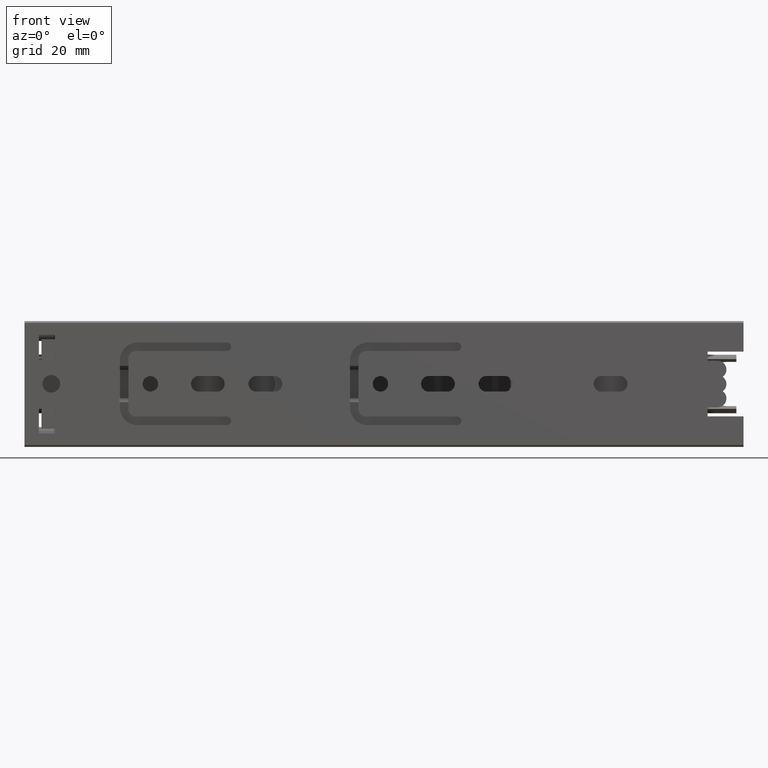
[diagram: clean part render]
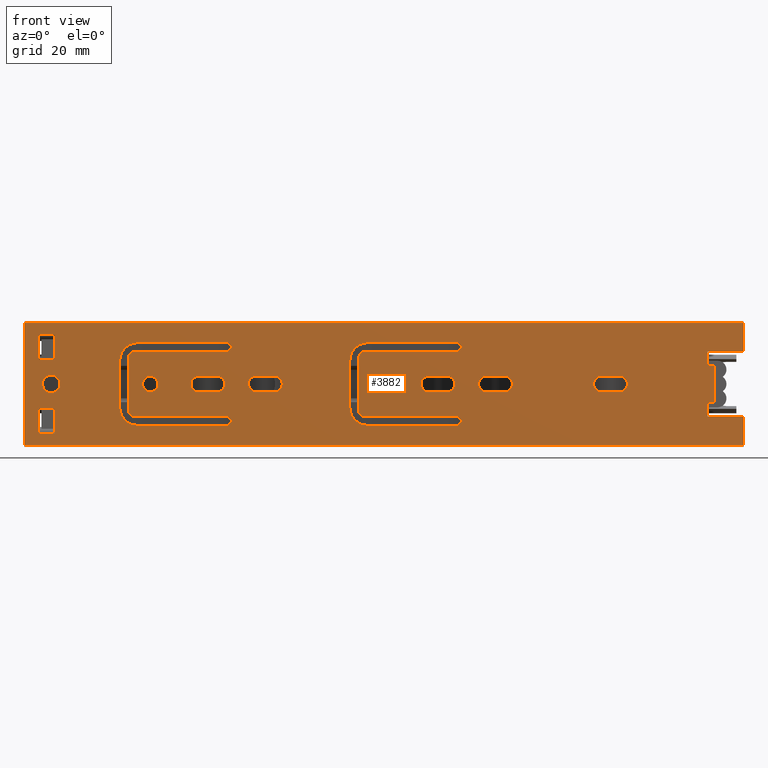
[diagram: same view with one face highlighted and labeled with its STEP entity id]
A machine part, front view. The second image highlights one B-rep face of the part: STEP entity #3882.
In plain terms, the highlighted planar face has unit normal (0, -1, 0).
Its self-contained STEP definition (entity closure, byte-faithful):
#139=FACE_BOUND('',#411,.T.);
#140=FACE_BOUND('',#412,.T.);
#141=FACE_BOUND('',#413,.T.);
#142=FACE_BOUND('',#414,.T.);
#143=FACE_BOUND('',#415,.T.);
#144=FACE_BOUND('',#416,.T.);
#145=FACE_BOUND('',#417,.T.);
#146=FACE_BOUND('',#418,.T.);
#147=FACE_BOUND('',#419,.T.);
#148=FACE_BOUND('',#420,.T.);
#149=FACE_BOUND('',#421,.T.);
#150=FACE_BOUND('',#422,.T.);
#191=FACE_OUTER_BOUND('',#410,.T.);
#410=EDGE_LOOP('',(#2741,#2742,#2743,#2744,#2745,#2746,#2747,#2748,#2749,
#2750,#2751,#2752));
#411=EDGE_LOOP('',(#2753,#2754,#2755,#2756));
#412=EDGE_LOOP('',(#2757,#2758,#2759,#2760));
#413=EDGE_LOOP('',(#2761,#2762,#2763,#2764));
#414=EDGE_LOOP('',(#2765,#2766,#2767,#2768));
#415=EDGE_LOOP('',(#2769));
#416=EDGE_LOOP('',(#2770));
#417=EDGE_LOOP('',(#2771));
#418=EDGE_LOOP('',(#2772,#2773,#2774,#2775));
#419=EDGE_LOOP('',(#2776,#2777,#2778,#2779));
#420=EDGE_LOOP('',(#2780,#2781,#2782,#2783));
#421=EDGE_LOOP('',(#2784,#2785,#2786,#2787,#2788,#2789,#2790,#2791,#2792,
#2793,#2794,#2795));
#422=EDGE_LOOP('',(#2796,#2797,#2798,#2799,#2800,#2801,#2802,#2803,#2804,
#2805,#2806,#2807));
#647=LINE('',#5652,#1073);
#652=LINE('',#5661,#1078);
#695=LINE('',#5799,#1121);
#698=LINE('',#5804,#1124);
#700=LINE('',#5808,#1126);
#701=LINE('',#5811,#1127);
#704=LINE('',#5816,#1130);
#705=LINE('',#5819,#1131);
#706=LINE('',#5821,#1132);
#707=LINE('',#5823,#1133);
#708=LINE('',#5825,#1134);
#709=LINE('',#5826,#1135);
#710=LINE('',#5831,#1136);
#711=LINE('',#5834,#1137);
#712=LINE('',#5839,#1138);
#713=LINE('',#5842,#1139);
#714=LINE('',#5847,#1140);
#715=LINE('',#5850,#1141);
#716=LINE('',#5853,#1142);
#717=LINE('',#5855,#1143);
#718=LINE('',#5857,#1144);
#719=LINE('',#5858,#1145);
#720=LINE('',#5867,#1146);
#721=LINE('',#5869,#1147);
#722=LINE('',#5871,#1148);
#723=LINE('',#5872,#1149);
#724=LINE('',#5877,#1150);
#725=LINE('',#5880,#1151);
#726=LINE('',#5885,#1152);
#727=LINE('',#5888,#1153);
#728=LINE('',#5893,#1154);
#729=LINE('',#5897,#1155);
#730=LINE('',#5901,#1156);
#731=LINE('',#5905,#1157);
#732=LINE('',#5909,#1158);
#733=LINE('',#5912,#1159);
#734=LINE('',#5917,#1160);
#735=LINE('',#5921,#1161);
#736=LINE('',#5925,#1162);
#737=LINE('',#5929,#1163);
#738=LINE('',#5933,#1164);
#739=LINE('',#5936,#1165);
#1073=VECTOR('',#4501,10.);
#1078=VECTOR('',#4508,1.99999999999999);
#1121=VECTOR('',#4609,1.99999999999999);
#1124=VECTOR('',#4614,4.00000000000003);
#1126=VECTOR('',#4618,10.);
#1127=VECTOR('',#4621,3.99999999999997);
#1130=VECTOR('',#4626,10.);
#1131=VECTOR('',#4629,8.);
#1132=VECTOR('',#4630,200.);
#1133=VECTOR('',#4631,34.);
#1134=VECTOR('',#4632,200.);
#1135=VECTOR('',#4633,8.);
#1136=VECTOR('',#4636,5.);
#1137=VECTOR('',#4639,5.);
#1138=VECTOR('',#4642,5.);
#1139=VECTOR('',#4645,5.);
#1140=VECTOR('',#4648,5.);
#1141=VECTOR('',#4651,5.);
#1142=VECTOR('',#4652,7.);
#1143=VECTOR('',#4653,4.49999999999999);
#1144=VECTOR('',#4654,7.);
#1145=VECTOR('',#4655,4.49999999999999);
#1146=VECTOR('',#4662,7.);
#1147=VECTOR('',#4663,4.49999999999999);
#1148=VECTOR('',#4664,7.);
#1149=VECTOR('',#4665,4.49999999999999);
#1150=VECTOR('',#4668,5.);
#1151=VECTOR('',#4671,5.);
#1152=VECTOR('',#4674,5.);
#1153=VECTOR('',#4677,5.);
#1154=VECTOR('',#4680,25.4);
#1155=VECTOR('',#4683,14.2);
#1156=VECTOR('',#4686,25.4);
#1157=VECTOR('',#4689,24.8);
#1158=VECTOR('',#4692,13.);
#1159=VECTOR('',#4695,24.8);
#1160=VECTOR('',#4698,24.7999999999999);
#1161=VECTOR('',#4701,13.);
#1162=VECTOR('',#4704,24.7999999999999);
#1163=VECTOR('',#4707,25.3999999999999);
#1164=VECTOR('',#4710,14.2);
#1165=VECTOR('',#4713,25.3999999999999);
#1519=CIRCLE('',#4133,2.2);
#1520=CIRCLE('',#4134,2.2);
#1521=CIRCLE('',#4135,2.20000000000006);
#1522=CIRCLE('',#4136,2.20000000000006);
#1523=CIRCLE('',#4137,2.2);
#1524=CIRCLE('',#4138,2.2);
#1525=CIRCLE('',#4139,2.15);
#1526=CIRCLE('',#4140,2.15);
#1527=CIRCLE('',#4141,2.45);
#1528=CIRCLE('',#4142,2.2);
#1529=CIRCLE('',#4143,2.2);
#1530=CIRCLE('',#4144,2.20000000000006);
#1531=CIRCLE('',#4145,2.20000000000006);
#1532=CIRCLE('',#4146,1.2);
#1533=CIRCLE('',#4147,1.99999999999999);
#1534=CIRCLE('',#4148,1.99999999999999);
#1535=CIRCLE('',#4149,1.2);
#1536=CIRCLE('',#4150,5.00000000000002);
#1537=CIRCLE('',#4151,5.00000000000002);
#1538=CIRCLE('',#4152,1.2);
#1539=CIRCLE('',#4153,5.);
#1540=CIRCLE('',#4154,5.);
#1541=CIRCLE('',#4155,1.2);
#1542=CIRCLE('',#4156,2.);
#1543=CIRCLE('',#4157,2.00000000000001);
#1648=VERTEX_POINT('',#5649);
#1649=VERTEX_POINT('',#5651);
#1652=VERTEX_POINT('',#5659);
#1718=VERTEX_POINT('',#5798);
#1719=VERTEX_POINT('',#5802);
#1720=VERTEX_POINT('',#5806);
#1721=VERTEX_POINT('',#5810);
#1722=VERTEX_POINT('',#5814);
#1723=VERTEX_POINT('',#5818);
#1724=VERTEX_POINT('',#5820);
#1725=VERTEX_POINT('',#5822);
#1726=VERTEX_POINT('',#5824);
#1727=VERTEX_POINT('',#5827);
#1728=VERTEX_POINT('',#5828);
#1729=VERTEX_POINT('',#5830);
#1730=VERTEX_POINT('',#5832);
#1731=VERTEX_POINT('',#5835);
#1732=VERTEX_POINT('',#5836);
#1733=VERTEX_POINT('',#5838);
#1734=VERTEX_POINT('',#5840);
#1735=VERTEX_POINT('',#5843);
#1736=VERTEX_POINT('',#5844);
#1737=VERTEX_POINT('',#5846);
#1738=VERTEX_POINT('',#5848);
#1739=VERTEX_POINT('',#5851);
#1740=VERTEX_POINT('',#5852);
#1741=VERTEX_POINT('',#5854);
#1742=VERTEX_POINT('',#5856);
#1743=VERTEX_POINT('',#5859);
#1744=VERTEX_POINT('',#5861);
#1745=VERTEX_POINT('',#5863);
#1746=VERTEX_POINT('',#5865);
#1747=VERTEX_POINT('',#5866);
#1748=VERTEX_POINT('',#5868);
#1749=VERTEX_POINT('',#5870);
#1750=VERTEX_POINT('',#5873);
#1751=VERTEX_POINT('',#5874);
#1752=VERTEX_POINT('',#5876);
#1753=VERTEX_POINT('',#5878);
#1754=VERTEX_POINT('',#5881);
#1755=VERTEX_POINT('',#5882);
#1756=VERTEX_POINT('',#5884);
#1757=VERTEX_POINT('',#5886);
#1758=VERTEX_POINT('',#5889);
#1759=VERTEX_POINT('',#5890);
#1760=VERTEX_POINT('',#5892);
#1761=VERTEX_POINT('',#5894);
#1762=VERTEX_POINT('',#5896);
#1763=VERTEX_POINT('',#5898);
#1764=VERTEX_POINT('',#5900);
#1765=VERTEX_POINT('',#5902);
#1766=VERTEX_POINT('',#5904);
#1767=VERTEX_POINT('',#5906);
#1768=VERTEX_POINT('',#5908);
#1769=VERTEX_POINT('',#5910);
#1770=VERTEX_POINT('',#5913);
#1771=VERTEX_POINT('',#5914);
#1772=VERTEX_POINT('',#5916);
#1773=VERTEX_POINT('',#5918);
#1774=VERTEX_POINT('',#5920);
#1775=VERTEX_POINT('',#5922);
#1776=VERTEX_POINT('',#5924);
#1777=VERTEX_POINT('',#5926);
#1778=VERTEX_POINT('',#5928);
#1779=VERTEX_POINT('',#5930);
#1780=VERTEX_POINT('',#5932);
#1781=VERTEX_POINT('',#5934);
#2043=EDGE_CURVE('',#1648,#1649,#647,.T.);
#2048=EDGE_CURVE('',#1652,#1648,#652,.T.);
#2116=EDGE_CURVE('',#1649,#1718,#695,.T.);
#2119=EDGE_CURVE('',#1652,#1719,#698,.T.);
#2121=EDGE_CURVE('',#1719,#1720,#700,.T.);
#2122=EDGE_CURVE('',#1721,#1718,#701,.T.);
#2125=EDGE_CURVE('',#1722,#1721,#704,.T.);
#2126=EDGE_CURVE('',#1723,#1720,#705,.T.);
#2127=EDGE_CURVE('',#1724,#1723,#706,.T.);
#2128=EDGE_CURVE('',#1725,#1724,#707,.T.);
#2129=EDGE_CURVE('',#1725,#1726,#708,.T.);
#2130=EDGE_CURVE('',#1722,#1726,#709,.T.);
#2131=EDGE_CURVE('',#1727,#1728,#1519,.T.);
#2132=EDGE_CURVE('',#1728,#1729,#710,.T.);
#2133=EDGE_CURVE('',#1729,#1730,#1520,.T.);
#2134=EDGE_CURVE('',#1730,#1727,#711,.T.);
#2135=EDGE_CURVE('',#1731,#1732,#1521,.T.);
#2136=EDGE_CURVE('',#1732,#1733,#712,.T.);
#2137=EDGE_CURVE('',#1733,#1734,#1522,.T.);
#2138=EDGE_CURVE('',#1734,#1731,#713,.T.);
#2139=EDGE_CURVE('',#1735,#1736,#1523,.T.);
#2140=EDGE_CURVE('',#1736,#1737,#714,.T.);
#2141=EDGE_CURVE('',#1737,#1738,#1524,.T.);
#2142=EDGE_CURVE('',#1738,#1735,#715,.T.);
#2143=EDGE_CURVE('',#1739,#1740,#716,.T.);
#2144=EDGE_CURVE('',#1740,#1741,#717,.T.);
#2145=EDGE_CURVE('',#1741,#1742,#718,.T.);
#2146=EDGE_CURVE('',#1742,#1739,#719,.T.);
#2147=EDGE_CURVE('',#1743,#1743,#1525,.T.);
#2148=EDGE_CURVE('',#1744,#1744,#1526,.T.);
#2149=EDGE_CURVE('',#1745,#1745,#1527,.T.);
#2150=EDGE_CURVE('',#1746,#1747,#720,.T.);
#2151=EDGE_CURVE('',#1747,#1748,#721,.T.);
#2152=EDGE_CURVE('',#1748,#1749,#722,.T.);
#2153=EDGE_CURVE('',#1749,#1746,#723,.T.);
#2154=EDGE_CURVE('',#1750,#1751,#1528,.T.);
#2155=EDGE_CURVE('',#1751,#1752,#724,.T.);
#2156=EDGE_CURVE('',#1752,#1753,#1529,.T.);
#2157=EDGE_CURVE('',#1753,#1750,#725,.T.);
#2158=EDGE_CURVE('',#1754,#1755,#1530,.T.);
#2159=EDGE_CURVE('',#1755,#1756,#726,.T.);
#2160=EDGE_CURVE('',#1756,#1757,#1531,.T.);
#2161=EDGE_CURVE('',#1757,#1754,#727,.T.);
#2162=EDGE_CURVE('',#1758,#1759,#1532,.T.);
#2163=EDGE_CURVE('',#1759,#1760,#728,.T.);
#2164=EDGE_CURVE('',#1760,#1761,#1533,.T.);
#2165=EDGE_CURVE('',#1761,#1762,#729,.T.);
#2166=EDGE_CURVE('',#1762,#1763,#1534,.T.);
#2167=EDGE_CURVE('',#1763,#1764,#730,.T.);
#2168=EDGE_CURVE('',#1764,#1765,#1535,.T.);
#2169=EDGE_CURVE('',#1765,#1766,#731,.T.);
#2170=EDGE_CURVE('',#1766,#1767,#1536,.T.);
#2171=EDGE_CURVE('',#1767,#1768,#732,.T.);
#2172=EDGE_CURVE('',#1768,#1769,#1537,.T.);
#2173=EDGE_CURVE('',#1769,#1758,#733,.T.);
#2174=EDGE_CURVE('',#1770,#1771,#1538,.T.);
#2175=EDGE_CURVE('',#1771,#1772,#734,.T.);
#2176=EDGE_CURVE('',#1772,#1773,#1539,.T.);
#2177=EDGE_CURVE('',#1773,#1774,#735,.T.);
#2178=EDGE_CURVE('',#1774,#1775,#1540,.T.);
#2179=EDGE_CURVE('',#1775,#1776,#736,.T.);
#2180=EDGE_CURVE('',#1776,#1777,#1541,.T.);
#2181=EDGE_CURVE('',#1777,#1778,#737,.T.);
#2182=EDGE_CURVE('',#1778,#1779,#1542,.T.);
#2183=EDGE_CURVE('',#1779,#1780,#738,.T.);
#2184=EDGE_CURVE('',#1780,#1781,#1543,.T.);
#2185=EDGE_CURVE('',#1781,#1770,#739,.T.);
#2741=ORIENTED_EDGE('',*,*,#2048,.F.);
#2742=ORIENTED_EDGE('',*,*,#2119,.T.);
#2743=ORIENTED_EDGE('',*,*,#2121,.T.);
#2744=ORIENTED_EDGE('',*,*,#2126,.F.);
#2745=ORIENTED_EDGE('',*,*,#2127,.F.);
#2746=ORIENTED_EDGE('',*,*,#2128,.F.);
#2747=ORIENTED_EDGE('',*,*,#2129,.T.);
#2748=ORIENTED_EDGE('',*,*,#2130,.F.);
#2749=ORIENTED_EDGE('',*,*,#2125,.T.);
#2750=ORIENTED_EDGE('',*,*,#2122,.T.);
#2751=ORIENTED_EDGE('',*,*,#2116,.F.);
#2752=ORIENTED_EDGE('',*,*,#2043,.F.);
#2753=ORIENTED_EDGE('',*,*,#2131,.T.);
#2754=ORIENTED_EDGE('',*,*,#2132,.T.);
#2755=ORIENTED_EDGE('',*,*,#2133,.T.);
#2756=ORIENTED_EDGE('',*,*,#2134,.T.);
#2757=ORIENTED_EDGE('',*,*,#2135,.T.);
#2758=ORIENTED_EDGE('',*,*,#2136,.T.);
#2759=ORIENTED_EDGE('',*,*,#2137,.T.);
#2760=ORIENTED_EDGE('',*,*,#2138,.T.);
#2761=ORIENTED_EDGE('',*,*,#2139,.T.);
#2762=ORIENTED_EDGE('',*,*,#2140,.T.);
#2763=ORIENTED_EDGE('',*,*,#2141,.T.);
#2764=ORIENTED_EDGE('',*,*,#2142,.T.);
#2765=ORIENTED_EDGE('',*,*,#2143,.T.);
#2766=ORIENTED_EDGE('',*,*,#2144,.T.);
#2767=ORIENTED_EDGE('',*,*,#2145,.T.);
#2768=ORIENTED_EDGE('',*,*,#2146,.T.);
#2769=ORIENTED_EDGE('',*,*,#2147,.T.);
#2770=ORIENTED_EDGE('',*,*,#2148,.T.);
#2771=ORIENTED_EDGE('',*,*,#2149,.T.);
#2772=ORIENTED_EDGE('',*,*,#2150,.T.);
#2773=ORIENTED_EDGE('',*,*,#2151,.T.);
#2774=ORIENTED_EDGE('',*,*,#2152,.T.);
#2775=ORIENTED_EDGE('',*,*,#2153,.T.);
#2776=ORIENTED_EDGE('',*,*,#2154,.T.);
#2777=ORIENTED_EDGE('',*,*,#2155,.T.);
#2778=ORIENTED_EDGE('',*,*,#2156,.T.);
#2779=ORIENTED_EDGE('',*,*,#2157,.T.);
#2780=ORIENTED_EDGE('',*,*,#2158,.T.);
#2781=ORIENTED_EDGE('',*,*,#2159,.T.);
#2782=ORIENTED_EDGE('',*,*,#2160,.T.);
#2783=ORIENTED_EDGE('',*,*,#2161,.T.);
#2784=ORIENTED_EDGE('',*,*,#2162,.T.);
#2785=ORIENTED_EDGE('',*,*,#2163,.T.);
#2786=ORIENTED_EDGE('',*,*,#2164,.T.);
#2787=ORIENTED_EDGE('',*,*,#2165,.T.);
#2788=ORIENTED_EDGE('',*,*,#2166,.T.);
#2789=ORIENTED_EDGE('',*,*,#2167,.T.);
#2790=ORIENTED_EDGE('',*,*,#2168,.T.);
#2791=ORIENTED_EDGE('',*,*,#2169,.T.);
#2792=ORIENTED_EDGE('',*,*,#2170,.T.);
#2793=ORIENTED_EDGE('',*,*,#2171,.T.);
#2794=ORIENTED_EDGE('',*,*,#2172,.T.);
#2795=ORIENTED_EDGE('',*,*,#2173,.T.);
#2796=ORIENTED_EDGE('',*,*,#2174,.T.);
#2797=ORIENTED_EDGE('',*,*,#2175,.T.);
#2798=ORIENTED_EDGE('',*,*,#2176,.T.);
#2799=ORIENTED_EDGE('',*,*,#2177,.T.);
#2800=ORIENTED_EDGE('',*,*,#2178,.T.);
#2801=ORIENTED_EDGE('',*,*,#2179,.T.);
#2802=ORIENTED_EDGE('',*,*,#2180,.T.);
#2803=ORIENTED_EDGE('',*,*,#2181,.T.);
#2804=ORIENTED_EDGE('',*,*,#2182,.T.);
#2805=ORIENTED_EDGE('',*,*,#2183,.T.);
#2806=ORIENTED_EDGE('',*,*,#2184,.T.);
#2807=ORIENTED_EDGE('',*,*,#2185,.T.);
#3743=PLANE('',#4132);
#3882=ADVANCED_FACE('',(#191,#139,#140,#141,#142,#143,#144,#145,#146,#147,
#148,#149,#150),#3743,.T.);
#4132=AXIS2_PLACEMENT_3D('',#5817,#4627,#4628);
#4133=AXIS2_PLACEMENT_3D('',#5829,#4634,#4635);
#4134=AXIS2_PLACEMENT_3D('',#5833,#4637,#4638);
#4135=AXIS2_PLACEMENT_3D('',#5837,#4640,#4641);
#4136=AXIS2_PLACEMENT_3D('',#5841,#4643,#4644);
#4137=AXIS2_PLACEMENT_3D('',#5845,#4646,#4647);
#4138=AXIS2_PLACEMENT_3D('',#5849,#4649,#4650);
#4139=AXIS2_PLACEMENT_3D('',#5860,#4656,#4657);
#4140=AXIS2_PLACEMENT_3D('',#5862,#4658,#4659);
#4141=AXIS2_PLACEMENT_3D('',#5864,#4660,#4661);
#4142=AXIS2_PLACEMENT_3D('',#5875,#4666,#4667);
#4143=AXIS2_PLACEMENT_3D('',#5879,#4669,#4670);
#4144=AXIS2_PLACEMENT_3D('',#5883,#4672,#4673);
#4145=AXIS2_PLACEMENT_3D('',#5887,#4675,#4676);
#4146=AXIS2_PLACEMENT_3D('',#5891,#4678,#4679);
#4147=AXIS2_PLACEMENT_3D('',#5895,#4681,#4682);
#4148=AXIS2_PLACEMENT_3D('',#5899,#4684,#4685);
#4149=AXIS2_PLACEMENT_3D('',#5903,#4687,#4688);
#4150=AXIS2_PLACEMENT_3D('',#5907,#4690,#4691);
#4151=AXIS2_PLACEMENT_3D('',#5911,#4693,#4694);
#4152=AXIS2_PLACEMENT_3D('',#5915,#4696,#4697);
#4153=AXIS2_PLACEMENT_3D('',#5919,#4699,#4700);
#4154=AXIS2_PLACEMENT_3D('',#5923,#4702,#4703);
#4155=AXIS2_PLACEMENT_3D('',#5927,#4705,#4706);
#4156=AXIS2_PLACEMENT_3D('',#5931,#4708,#4709);
#4157=AXIS2_PLACEMENT_3D('',#5935,#4711,#4712);
#4501=DIRECTION('',(0.,-3.06161699786838E-16,-1.));
#4508=DIRECTION('',(1.,-3.39907768361724E-31,-1.11022302462516E-15));
#4609=DIRECTION('',(-1.,0.,0.));
#4614=DIRECTION('',(0.,3.06161699786838E-16,1.));
#4618=DIRECTION('',(1.,0.,0.));
#4621=DIRECTION('',(0.,3.06161699786838E-16,1.));
#4626=DIRECTION('',(-1.,-4.71385096176607E-32,-1.53966056663784E-16));
#4627=DIRECTION('center_axis',(0.,-1.,3.06161699786838E-16));
#4628=DIRECTION('ref_axis',(0.,-3.06161699786838E-16,-1.));
#4629=DIRECTION('',(0.,-3.06161699786838E-16,-1.));
#4630=DIRECTION('',(1.,0.,0.));
#4631=DIRECTION('',(0.,-3.06161699786838E-16,1.));
#4632=DIRECTION('',(1.,0.,0.));
#4633=DIRECTION('',(0.,-3.06161699786838E-16,-1.));
#4634=DIRECTION('center_axis',(0.,1.,-3.06161699786838E-16));
#4635=DIRECTION('ref_axis',(0.,-2.77555756156289E-16,-1.));
#4636=DIRECTION('',(1.,-1.35963107344689E-31,-4.44089209850063E-16));
#4637=DIRECTION('center_axis',(0.,1.,-3.06161699786838E-16));
#4638=DIRECTION('ref_axis',(0.,2.77555756156289E-16,1.));
#4639=DIRECTION('',(-1.,0.,0.));
#4640=DIRECTION('center_axis',(0.,1.,-3.06161699786838E-16));
#4641=DIRECTION('ref_axis',(0.,-2.77555756156289E-16,-1.));
#4642=DIRECTION('',(1.,-1.35963107344689E-31,-4.44089209850063E-16));
#4643=DIRECTION('center_axis',(0.,1.,-3.06161699786838E-16));
#4644=DIRECTION('ref_axis',(0.,2.77555756156289E-16,1.));
#4645=DIRECTION('',(-1.,0.,0.));
#4646=DIRECTION('center_axis',(0.,1.,-3.06161699786838E-16));
#4647=DIRECTION('ref_axis',(0.,-2.77555756156289E-16,-1.));
#4648=DIRECTION('',(1.,1.35963107344689E-31,4.44089209850063E-16));
#4649=DIRECTION('center_axis',(0.,1.,-3.06161699786838E-16));
#4650=DIRECTION('ref_axis',(0.,2.77555756156289E-16,1.));
#4651=DIRECTION('',(-1.,1.35963107344689E-31,4.44089209850063E-16));
#4652=DIRECTION('',(-4.75809867696496E-16,3.06161699786838E-16,1.));
#4653=DIRECTION('',(1.,0.,0.));
#4654=DIRECTION('',(3.1720657846433E-16,-3.06161699786838E-16,-1.));
#4655=DIRECTION('',(-1.,0.,0.));
#4656=DIRECTION('center_axis',(0.,1.,-3.06161699786838E-16));
#4657=DIRECTION('ref_axis',(-1.,0.,0.));
#4658=DIRECTION('center_axis',(0.,1.,-3.06161699786838E-16));
#4659=DIRECTION('ref_axis',(-1.,0.,0.));
#4660=DIRECTION('center_axis',(0.,1.,-3.06161699786838E-16));
#4661=DIRECTION('ref_axis',(-1.,0.,0.));
#4662=DIRECTION('',(-1.58603289232165E-16,3.06161699786838E-16,1.));
#4663=DIRECTION('',(1.,0.,0.));
#4664=DIRECTION('',(0.,-3.06161699786838E-16,-1.));
#4665=DIRECTION('',(-1.,0.,0.));
#4666=DIRECTION('center_axis',(0.,1.,-3.06161699786838E-16));
#4667=DIRECTION('ref_axis',(0.,-2.77555756156289E-16,-1.));
#4668=DIRECTION('',(1.,2.71926214689378E-31,8.88178419700125E-16));
#4669=DIRECTION('center_axis',(0.,1.,-3.06161699786838E-16));
#4670=DIRECTION('ref_axis',(0.,2.77555756156289E-16,1.));
#4671=DIRECTION('',(-1.,-1.35963107344689E-31,-4.44089209850063E-16));
#4672=DIRECTION('center_axis',(0.,1.,-3.06161699786838E-16));
#4673=DIRECTION('ref_axis',(0.,-2.77555756156289E-16,-1.));
#4674=DIRECTION('',(1.,-2.71926214689378E-31,-8.88178419700125E-16));
#4675=DIRECTION('center_axis',(0.,1.,-3.06161699786838E-16));
#4676=DIRECTION('ref_axis',(0.,2.77555756156289E-16,1.));
#4677=DIRECTION('',(-1.,1.35963107344689E-31,4.44089209850063E-16));
#4678=DIRECTION('center_axis',(0.,1.,-3.06161699786838E-16));
#4679=DIRECTION('ref_axis',(0.,3.70074341541719E-16,1.));
#4680=DIRECTION('',(-1.,1.07057564838338E-31,3.49676543189026E-16));
#4681=DIRECTION('center_axis',(0.,-1.,3.06161699786838E-16));
#4682=DIRECTION('ref_axis',(0.,3.70074341541719E-16,1.));
#4683=DIRECTION('',(0.,-3.06161699786838E-16,-1.));
#4684=DIRECTION('center_axis',(0.,-1.,3.06161699786838E-16));
#4685=DIRECTION('ref_axis',(-1.,2.05432527401306E-31,5.5511151231258E-16));
#4686=DIRECTION('',(1.,-9.36753692335457E-32,-3.05966975290398E-16));
#4687=DIRECTION('center_axis',(0.,1.,-3.06161699786838E-16));
#4688=DIRECTION('ref_axis',(0.,3.70074341541719E-16,1.));
#4689=DIRECTION('',(-1.,2.74119168033647E-32,8.95341148891255E-17));
#4690=DIRECTION('center_axis',(0.,1.,-3.06161699786838E-16));
#4691=DIRECTION('ref_axis',(1.,0.,0.));
#4692=DIRECTION('',(0.,3.06161699786838E-16,1.));
#4693=DIRECTION('center_axis',(0.,1.,-3.06161699786838E-16));
#4694=DIRECTION('ref_axis',(0.,-3.70074341541719E-16,-1.));
#4695=DIRECTION('',(1.,5.48238336067295E-32,1.79068229778251E-16));
#4696=DIRECTION('center_axis',(0.,1.,-3.06161699786838E-16));
#4697=DIRECTION('ref_axis',(0.,0.,1.));
#4698=DIRECTION('',(-1.,-5.48238336067296E-32,-1.79068229778252E-16));
#4699=DIRECTION('center_axis',(0.,1.,-3.06161699786838E-16));
#4700=DIRECTION('ref_axis',(1.,0.,-4.44089209850063E-16));
#4701=DIRECTION('',(0.,3.06161699786838E-16,1.));
#4702=DIRECTION('center_axis',(0.,1.,-3.06161699786838E-16));
#4703=DIRECTION('ref_axis',(0.,0.,-1.));
#4704=DIRECTION('',(1.,-5.48238336067296E-32,-1.79068229778252E-16));
#4705=DIRECTION('center_axis',(0.,1.,-3.06161699786838E-16));
#4706=DIRECTION('ref_axis',(0.,0.,1.));
#4707=DIRECTION('',(-1.,0.,0.));
#4708=DIRECTION('center_axis',(0.,-1.,3.06161699786838E-16));
#4709=DIRECTION('ref_axis',(0.,0.,1.));
#4710=DIRECTION('',(-6.254777603522E-16,-3.06161699786838E-16,-1.));
#4711=DIRECTION('center_axis',(0.,-1.,3.06161699786838E-16));
#4712=DIRECTION('ref_axis',(-1.,0.,0.));
#4713=DIRECTION('',(1.,0.,0.));
#5649=CARTESIAN_POINT('',(92.,1.53080849893418E-15,4.99999999999997));
#5651=CARTESIAN_POINT('',(92.,-1.5308084989342E-15,-5.00000000000003));
#5652=CARTESIAN_POINT('',(92.,1.53080849893418E-15,4.99999999999997));
#5659=CARTESIAN_POINT('',(90.,1.53080849893418E-15,4.99999999999997));
#5661=CARTESIAN_POINT('',(90.,1.53080849893418E-15,4.99999999999997));
#5798=CARTESIAN_POINT('',(90.,-1.5308084989342E-15,-5.00000000000003));
#5799=CARTESIAN_POINT('',(92.,-1.5308084989342E-15,-5.00000000000003));
#5802=CARTESIAN_POINT('',(90.,2.75545529808154E-15,9.));
#5804=CARTESIAN_POINT('',(90.,1.22464679914735E-15,4.));
#5806=CARTESIAN_POINT('',(100.,2.75545529808154E-15,9.));
#5808=CARTESIAN_POINT('',(45.,2.75545529808154E-15,9.));
#5810=CARTESIAN_POINT('',(90.,-2.75545529808154E-15,-9.));
#5811=CARTESIAN_POINT('',(90.,1.22464679914735E-15,4.));
#5814=CARTESIAN_POINT('',(100.,-2.75545529808154E-15,-9.));
#5816=CARTESIAN_POINT('',(52.2108297678205,-2.75545529808155E-15,-9.00000000000001));
#5817=CARTESIAN_POINT('Origin',(0.,5.20474889637625E-15,17.));
#5818=CARTESIAN_POINT('',(100.,5.20474889637625E-15,17.));
#5819=CARTESIAN_POINT('',(100.,5.20474889637625E-15,17.));
#5820=CARTESIAN_POINT('',(-100.,5.20474889637625E-15,17.));
#5821=CARTESIAN_POINT('',(0.,5.20474889637625E-15,17.));
#5822=CARTESIAN_POINT('',(-100.,5.20474889637625E-15,-17.));
#5823=CARTESIAN_POINT('',(-100.,0.,0.));
#5824=CARTESIAN_POINT('',(100.,5.20474889637625E-15,-17.));
#5825=CARTESIAN_POINT('',(0.,5.20474889637625E-15,-17.));
#5826=CARTESIAN_POINT('',(100.,5.20474889637625E-15,17.));
#5827=CARTESIAN_POINT('',(60.5,-6.73555739531045E-16,-2.2));
#5828=CARTESIAN_POINT('',(60.5,6.73555739531045E-16,2.2));
#5829=CARTESIAN_POINT('Origin',(60.5,4.86301041719335E-16,-1.34975653354001E-31));
#5830=CARTESIAN_POINT('',(65.5,6.73555739531044E-16,2.2));
#5831=CARTESIAN_POINT('',(30.25,6.7355573953105E-16,2.20000000000002));
#5832=CARTESIAN_POINT('',(65.5,-6.73555739531045E-16,-2.2));
#5833=CARTESIAN_POINT('Origin',(65.5,4.86301041719335E-16,-1.34975653354001E-31));
#5834=CARTESIAN_POINT('',(32.75,-6.73555739531045E-16,-2.2));
#5835=CARTESIAN_POINT('',(12.5,-6.73555739531045E-16,-2.2));
#5836=CARTESIAN_POINT('',(12.5,6.73555739531045E-16,2.2));
#5837=CARTESIAN_POINT('Origin',(12.5,4.86301041719335E-16,-1.34975653354001E-31));
#5838=CARTESIAN_POINT('',(17.5,6.73555739531044E-16,2.2));
#5839=CARTESIAN_POINT('',(6.25000000000001,6.73555739531046E-16,2.20000000000001));
#5840=CARTESIAN_POINT('',(17.5,-6.73555739531045E-16,-2.2));
#5841=CARTESIAN_POINT('Origin',(17.5,4.86301041719335E-16,-1.34975653354001E-31));
#5842=CARTESIAN_POINT('',(8.75000000000001,-6.73555739531044E-16,-2.2));
#5843=CARTESIAN_POINT('',(-51.5,-6.73555739531039E-16,-2.19999999999998));
#5844=CARTESIAN_POINT('',(-51.5,6.73555739531049E-16,2.20000000000002));
#5845=CARTESIAN_POINT('Origin',(-51.5,4.8630104171934E-16,1.77635683940025E-14));
#5846=CARTESIAN_POINT('',(-46.5,6.73555739531049E-16,2.20000000000002));
#5847=CARTESIAN_POINT('',(-25.75,6.73555739531054E-16,2.20000000000003));
#5848=CARTESIAN_POINT('',(-46.5,-6.73555739531039E-16,-2.19999999999998));
#5849=CARTESIAN_POINT('Origin',(-46.5,4.8630104171934E-16,1.77635683940025E-14));
#5850=CARTESIAN_POINT('',(-23.25,-6.73555739531042E-16,-2.19999999999999));
#5851=CARTESIAN_POINT('',(-96.,2.06659147356116E-15,6.75));
#5852=CARTESIAN_POINT('',(-96.,4.20972337206903E-15,13.75));
#5853=CARTESIAN_POINT('',(-96.,3.6356701849687E-15,11.875));
#5854=CARTESIAN_POINT('',(-91.5,4.20972337206903E-15,13.75));
#5855=CARTESIAN_POINT('',(-48.,4.20972337206903E-15,13.75));
#5856=CARTESIAN_POINT('',(-91.5,2.06659147356116E-15,6.75));
#5857=CARTESIAN_POINT('',(-91.5,4.70723613422263E-15,15.375));
#5858=CARTESIAN_POINT('',(-45.75,2.06659147356116E-15,6.75));
#5859=CARTESIAN_POINT('',(1.15000000000002,8.06120883180748E-32,2.63299061816681E-16));
#5860=CARTESIAN_POINT('Origin',(-0.999999999999979,0.,0.));
#5861=CARTESIAN_POINT('',(-62.85,8.06120883180748E-32,2.63299061816681E-16));
#5862=CARTESIAN_POINT('Origin',(-65.,0.,0.));
#5863=CARTESIAN_POINT('',(-90.1,9.18602866880388E-32,3.00038465791102E-16));
#5864=CARTESIAN_POINT('Origin',(-92.55,0.,0.));
#5865=CARTESIAN_POINT('',(-96.,-4.20972337206903E-15,-13.75));
#5866=CARTESIAN_POINT('',(-96.,-2.06659147356116E-15,-6.75));
#5867=CARTESIAN_POINT('',(-96.,4.9751276215361E-16,1.62499999999999));
#5868=CARTESIAN_POINT('',(-91.5,-2.06659147356116E-15,-6.75));
#5869=CARTESIAN_POINT('',(-48.,-2.06659147356116E-15,-6.75));
#5870=CARTESIAN_POINT('',(-91.5,-4.20972337206903E-15,-13.75));
#5871=CARTESIAN_POINT('',(-91.5,1.56907871140755E-15,5.125));
#5872=CARTESIAN_POINT('',(-45.75,-4.20972337206903E-15,-13.75));
#5873=CARTESIAN_POINT('',(-35.5,-6.73555739531045E-16,-2.2));
#5874=CARTESIAN_POINT('',(-35.5,6.73555739531043E-16,2.2));
#5875=CARTESIAN_POINT('Origin',(-35.5,4.86301041719335E-16,-1.34975653354001E-31));
#5876=CARTESIAN_POINT('',(-30.5,6.73555739531044E-16,2.2));
#5877=CARTESIAN_POINT('',(-17.75,6.73555739531047E-16,2.20000000000001));
#5878=CARTESIAN_POINT('',(-30.5,-6.73555739531045E-16,-2.2));
#5879=CARTESIAN_POINT('Origin',(-30.5,4.86301041719335E-16,-1.34975653354001E-31));
#5880=CARTESIAN_POINT('',(-15.25,-6.73555739531042E-16,-2.19999999999999));
#5881=CARTESIAN_POINT('',(28.5,-6.73555739531045E-16,-2.2));
#5882=CARTESIAN_POINT('',(28.5,6.73555739531045E-16,2.2));
#5883=CARTESIAN_POINT('Origin',(28.5,4.86301041719335E-16,-1.34975653354001E-31));
#5884=CARTESIAN_POINT('',(33.5,6.73555739531044E-16,2.2));
#5885=CARTESIAN_POINT('',(14.25,6.7355573953105E-16,2.20000000000002));
#5886=CARTESIAN_POINT('',(33.5,-6.73555739531045E-16,-2.2));
#5887=CARTESIAN_POINT('Origin',(33.5,4.86301041719335E-16,-1.34975653354001E-31));
#5888=CARTESIAN_POINT('',(16.75,-6.73555739531042E-16,-2.19999999999999));
#5889=CARTESIAN_POINT('',(20.3,3.52085954754864E-15,11.5));
#5890=CARTESIAN_POINT('',(20.3,2.78607146806023E-15,9.1));
#5891=CARTESIAN_POINT('Origin',(20.3,2.72525080804673E-15,10.3));
#5892=CARTESIAN_POINT('',(-5.09999999999998,2.78607146806023E-15,9.10000000000001));
#5893=CARTESIAN_POINT('',(10.15,2.78607146806023E-15,9.1));
#5894=CARTESIAN_POINT('',(-7.09999999999997,2.17374806848655E-15,7.1));
#5895=CARTESIAN_POINT('Origin',(-5.09999999999998,1.54101291511324E-15,
7.1));
#5896=CARTESIAN_POINT('',(-7.09999999999997,-2.17374806848655E-15,-7.09999999999999));
#5897=CARTESIAN_POINT('',(-7.09999999999997,3.6892484824314E-15,12.05));
#5898=CARTESIAN_POINT('',(-5.09999999999998,-2.78607146806023E-15,-9.1));
#5899=CARTESIAN_POINT('Origin',(-5.09999999999998,-3.71404273477917E-15,
-7.1));
#5900=CARTESIAN_POINT('',(20.3,-2.78607146806023E-15,-9.1));
#5901=CARTESIAN_POINT('',(-2.54999999999999,-2.78607146806023E-15,-9.1));
#5902=CARTESIAN_POINT('',(20.3,-3.52085954754864E-15,-11.5));
#5903=CARTESIAN_POINT('Origin',(20.3,-4.89828062771268E-15,-10.3));
#5904=CARTESIAN_POINT('',(-4.49999999999999,-3.52085954754864E-15,-11.5));
#5905=CARTESIAN_POINT('',(10.15,-3.52085954754864E-15,-11.5));
#5906=CARTESIAN_POINT('',(-9.49999999999998,-1.99005104861445E-15,-6.5));
#5907=CARTESIAN_POINT('Origin',(-4.49999999999999,-3.49199812985414E-15,
-6.5));
#5908=CARTESIAN_POINT('',(-9.49999999999998,1.99005104861445E-15,6.49999999999999));
#5909=CARTESIAN_POINT('',(-9.49999999999998,1.6073489238809E-15,5.25));
#5910=CARTESIAN_POINT('',(-4.49999999999999,3.52085954754864E-15,11.5));
#5911=CARTESIAN_POINT('Origin',(-4.49999999999999,1.3189683101882E-15,6.49999999999999));
#5912=CARTESIAN_POINT('',(-2.25,3.52085954754864E-15,11.5));
#5913=CARTESIAN_POINT('',(-43.7000000000001,-2.78607146806023E-15,-9.09999999999999));
#5914=CARTESIAN_POINT('',(-43.7000000000001,-3.52085954754864E-15,-11.5));
#5915=CARTESIAN_POINT('Origin',(-43.7000000000001,5.20474889637625E-15,
-10.3));
#5916=CARTESIAN_POINT('',(-68.5,-3.52085954754864E-15,-11.5));
#5917=CARTESIAN_POINT('',(-21.85,-3.52085954754863E-15,-11.5));
#5918=CARTESIAN_POINT('',(-73.5,-1.99005104861445E-15,-6.49999999999999));
#5919=CARTESIAN_POINT('Origin',(-68.5,5.20474889637625E-15,-6.5));
#5920=CARTESIAN_POINT('',(-73.5,1.99005104861445E-15,6.49999999999999));
#5921=CARTESIAN_POINT('',(-73.5,1.6073489238809E-15,5.25));
#5922=CARTESIAN_POINT('',(-68.5,3.52085954754864E-15,11.5));
#5923=CARTESIAN_POINT('Origin',(-68.5,5.20474889637625E-15,6.49999999999999));
#5924=CARTESIAN_POINT('',(-43.7000000000001,3.52085954754864E-15,11.5));
#5925=CARTESIAN_POINT('',(-34.25,3.52085954754864E-15,11.5));
#5926=CARTESIAN_POINT('',(-43.7000000000001,2.78607146806023E-15,9.10000000000001));
#5927=CARTESIAN_POINT('Origin',(-43.7000000000001,5.20474889637625E-15,
10.3));
#5928=CARTESIAN_POINT('',(-69.1,2.78607146806023E-15,9.10000000000001));
#5929=CARTESIAN_POINT('',(-21.85,2.78607146806023E-15,9.10000000000001));
#5930=CARTESIAN_POINT('',(-71.1,2.17374806848655E-15,7.10000000000001));
#5931=CARTESIAN_POINT('Origin',(-69.1,5.20474889637625E-15,7.10000000000001));
#5932=CARTESIAN_POINT('',(-71.1,-2.17374806848655E-15,-7.09999999999999));
#5933=CARTESIAN_POINT('',(-71.1,3.68924848243141E-15,12.05));
#5934=CARTESIAN_POINT('',(-69.1,-2.78607146806023E-15,-9.09999999999999));
#5935=CARTESIAN_POINT('Origin',(-69.1,5.20474889637625E-15,-7.09999999999999));
#5936=CARTESIAN_POINT('',(-34.55,-2.78607146806023E-15,-9.09999999999999));